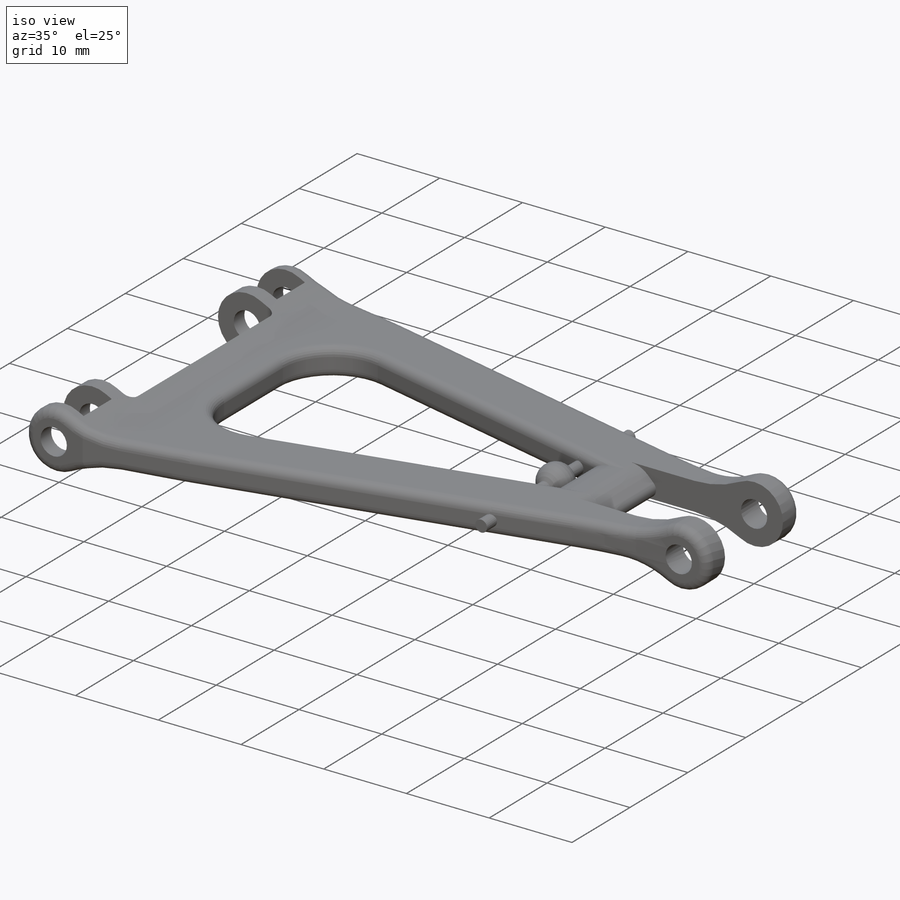
[diagram: iso view]
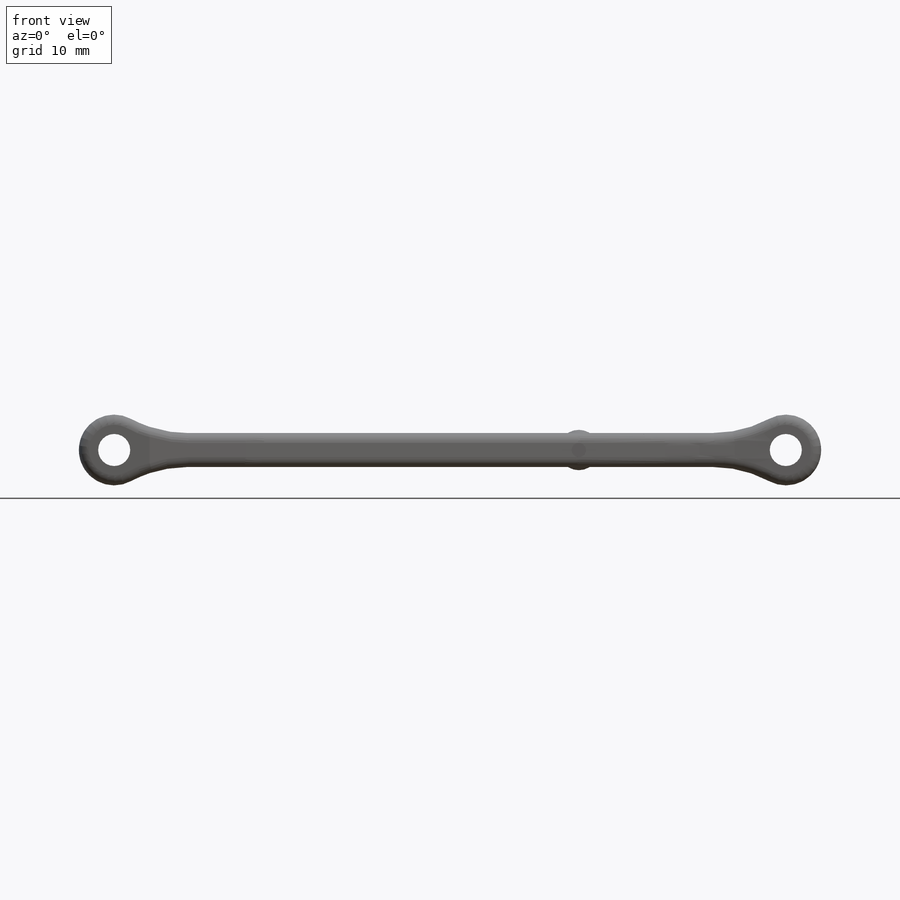
[diagram: front view]
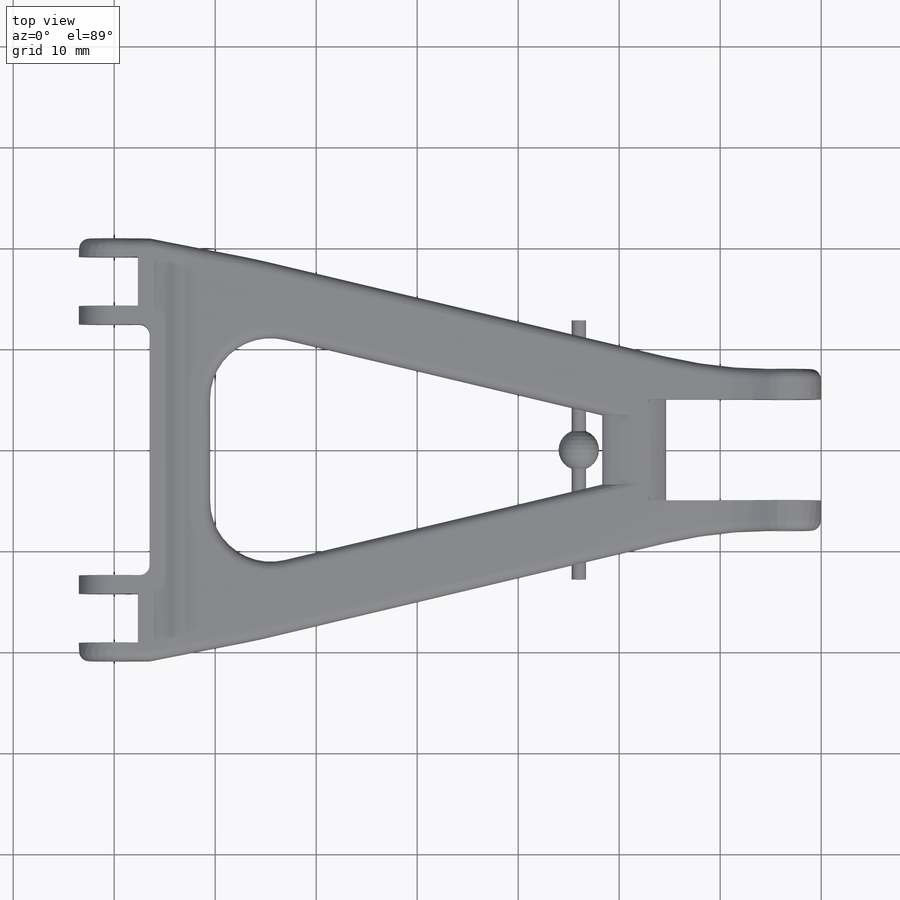
[diagram: top view]
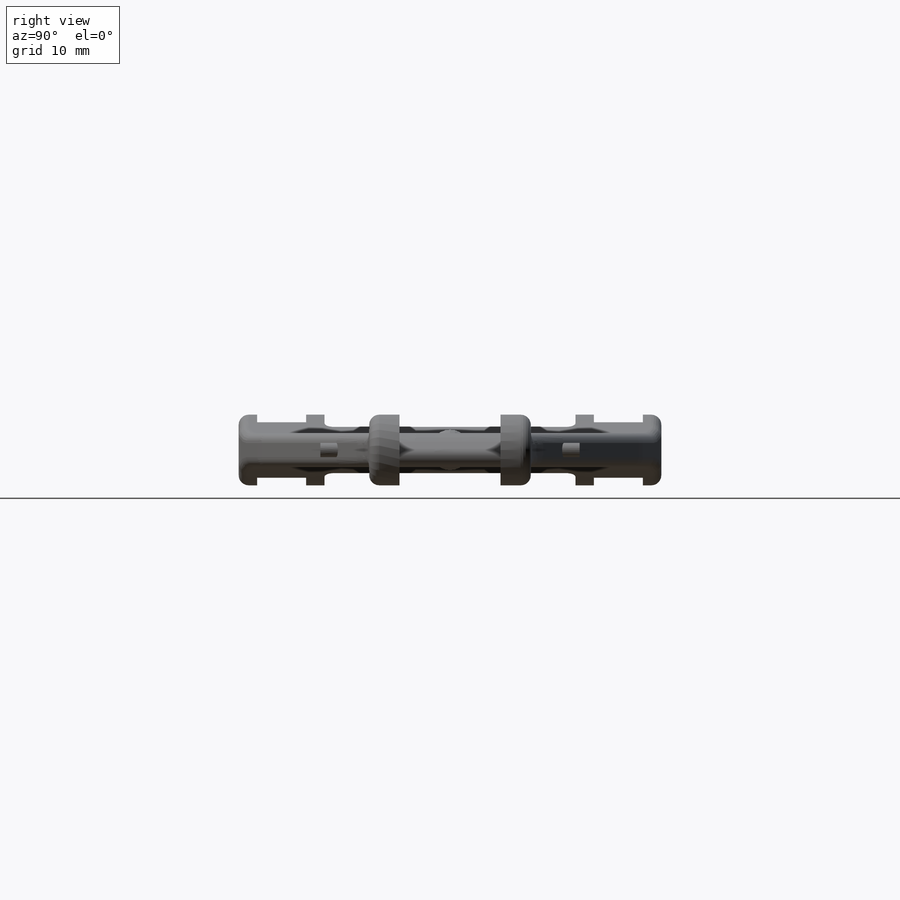
[diagram: right view]
SOLIDWORKS PART (.sldprt)
format: sldprt  version: not decoded by parser v0  size: 662,528 bytes
history: native  units: mm
features: fillet x5, sketch x4, plane x2, material x1, extrude x1, cut_extrude x1, revolve x1, chamfer x1 (+11 scaffold rows collapsed)
feature tree (27):
  scaffold x11  (default folders/planes/origin — collapsed)
  material  "6061 Alloy"
  sketch  "Sketch1"  dims[c1.D13=2.0mm c1.D1=6.0mm c1.D2=6.0mm c1.D3=8.5mm c1.D4=6.0mm c1.D5=6.0mm c1.D6=8.0mm c1.D7=7.0mm c1.D8=28.5mm c1.D9=38.2mm c1.D10=10.0mm c1.D11=3.0mm c1.D12=~0.706946mm c2.D2=70.0mm c2.D14=~5.772695mm]
  extrude  "Boss-Extrude1"  Depth=3.5mm
  sketch  "Sketch2"  dims[c1.D1=3.175mm c1.D3=3.175mm c2.D1=3.175mm c2.D2=5.5mm]
  cut_extrude  "Cut-Extrude1"  [1 undecoded]
  revolve  "Revolve1"  [1 undecoded]
  sketch  "Sketch1<3>"  dims[D1=360.0deg]
  fillet  "Fillet18"  Radius=6mm
  fillet  "Fillet19"  Radius=46mm
  fillet  "Fillet20"  Radius=1mm
  plane  "Plane1"
  sketch  "Sketch3"
  plane  "Plane2"
  chamfer  "Chamfer1"  Distance=3.2mm Angle=45deg
  fillet  "Fillet24"  Radius=3mm
  fillet  "Fillet25"  Radius=1mm
decode coverage: 10 of 13 modeling features carry decoded parameters
note: ~ marks probable driven/reference dimensions
note: 2 parameter values undecoded
note: suppression state not decoded; provenance and decode notes live in map.json
